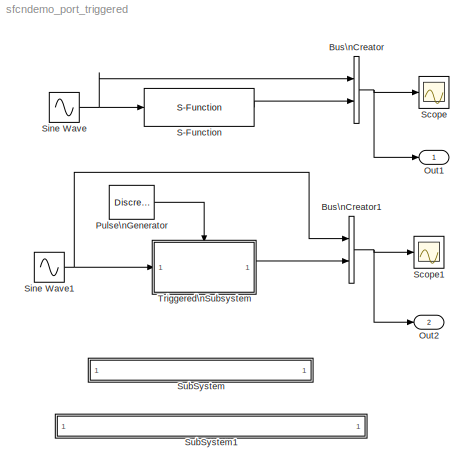
MODEL sfcndemo_port_triggered
KIND model
BLOCK [BusCreator] Bus\nCreator
  DialogController = Simulink.DDGSource_Bus
  DisplayOption = bar
  Inputs = 2
  Ports = [2, 1]
BLOCK [BusCreator] Bus\nCreator1
  DialogController = Simulink.DDGSource_Bus
  DisplayOption = bar
  Inputs = 2
  Ports = [2, 1]
BLOCK [Outport] Out1
  IconDisplay = Port number
BLOCK [Outport] Out2
  IconDisplay = Port number
  Port = 2
BLOCK [DiscretePulseGenerator] Pulse\nGenerator
  Ports = [0, 1]
  PulseType = Time based
  PulseWidth = 50
BLOCK [S-Function] S-Function
  FunctionName = sfun_port_triggered
  Parameters = 10
  Ports = [1, 1]
BLOCK [Scope] Scope
  DataFormat = StructureWithTime
  NumInputPorts = 1
  Ports = [1]
BLOCK [Scope] Scope1
  DataFormat = StructureWithTime
  NumInputPorts = 1
  Ports = [1]
  SaveName = ScopeData1
BLOCK [Sin] Sine Wave
  Ports = [0, 1]
  SampleTime = 0.1
  SineType = Time based
BLOCK [Sin] Sine Wave1
  Ports = [0, 1]
  SampleTime = 0
  SineType = Time based
BLOCK [SubSystem] SubSystem
  MaskDisplay = disp('matlabroot<path>');
  MaskIconFrame = on
  MaskIconOpaque = on
  MaskIconRotate = none
  MaskIconUnits = autoscale
  MinAlgLoopOccurrences = off
  OpenFcn = edit(fullfile(matlabroot,'simulink','src','sfun_port_triggered.c'))
  Ports = []
  PropExecContextAcrossSSBoundary = on
  RTWSystemCode = Auto
  TreatAsAtomicUnit = off
BLOCK [SubSystem] SubSystem1
  MaskDisplay = disp('matlabroot<path>');
  MaskIconFrame = on
  MaskIconOpaque = on
  MaskIconRotate = none
  MaskIconUnits = autoscale
  MinAlgLoopOccurrences = off
  OpenFcn = edit(fullfile(matlabroot,'toolbox','simulink','blocks','tlc_c','sfun_port_triggered.tlc'))
  Ports = []
  PropExecContextAcrossSSBoundary = on
  RTWSystemCode = Auto
  TreatAsAtomicUnit = off
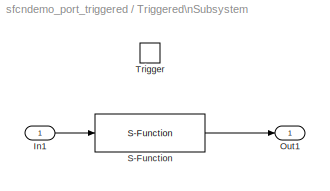
BLOCK [SubSystem] Triggered\nSubsystem
  MinAlgLoopOccurrences = off
  Ports = [1, 1, 0, 1]
  PropExecContextAcrossSSBoundary = on
  RTWSystemCode = Auto
  TreatAsAtomicUnit = on
BLOCK [Inport] Triggered\nSubsystem/In1
  IconDisplay = Port number
  LatchInput = off
  Port = 1
BLOCK [Outport] Triggered\nSubsystem/Out1
  IconDisplay = Port number
BLOCK [S-Function] Triggered\nSubsystem/S-Function
  FunctionName = sfun_port_triggered
  Parameters = 2
  Ports = [1, 1]
BLOCK [TriggerPort] Triggered\nSubsystem/Trigger
  Ports = []
NET Bus\nCreator1:1 -> Out2:1, Scope1:1
NET Bus\nCreator:1 -> Out1:1, Scope:1
LINE Pulse\nGenerator:1 -> Triggered\nSubsystem:trigger
LINE S-Function:1 -> Bus\nCreator:2
NET Sine Wave1:1 -> Bus\nCreator1:1, Triggered\nSubsystem:1
NET Sine Wave:1 -> Bus\nCreator:1, S-Function:1
LINE Triggered\nSubsystem/In1:1 -> Triggered\nSubsystem/S-Function:1
LINE Triggered\nSubsystem/S-Function:1 -> Triggered\nSubsystem/Out1:1
LINE Triggered\nSubsystem:1 -> Bus\nCreator1:2
note: NET lines group one-source signal fan-out (src -> all destinations, sorted); 1:1 wires keep LINE
note: 2 file-system paths scrubbed to <path> (not preserved elsewhere — flat text is the only slx artifact)
